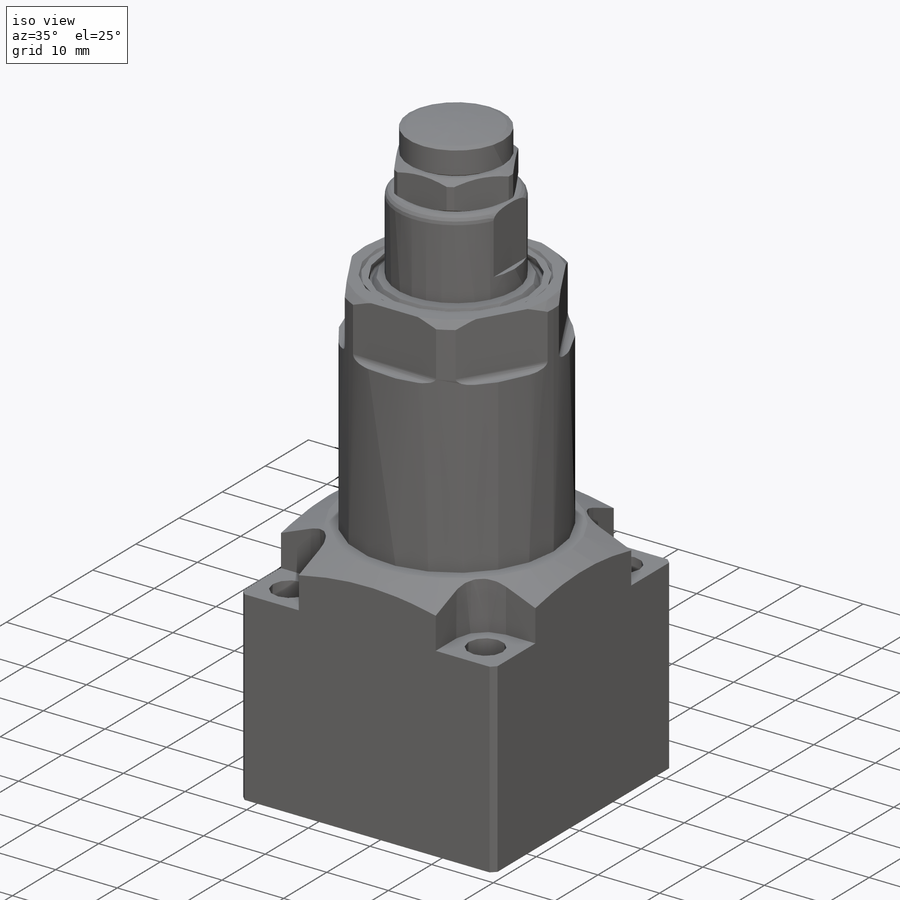
[diagram: iso view]
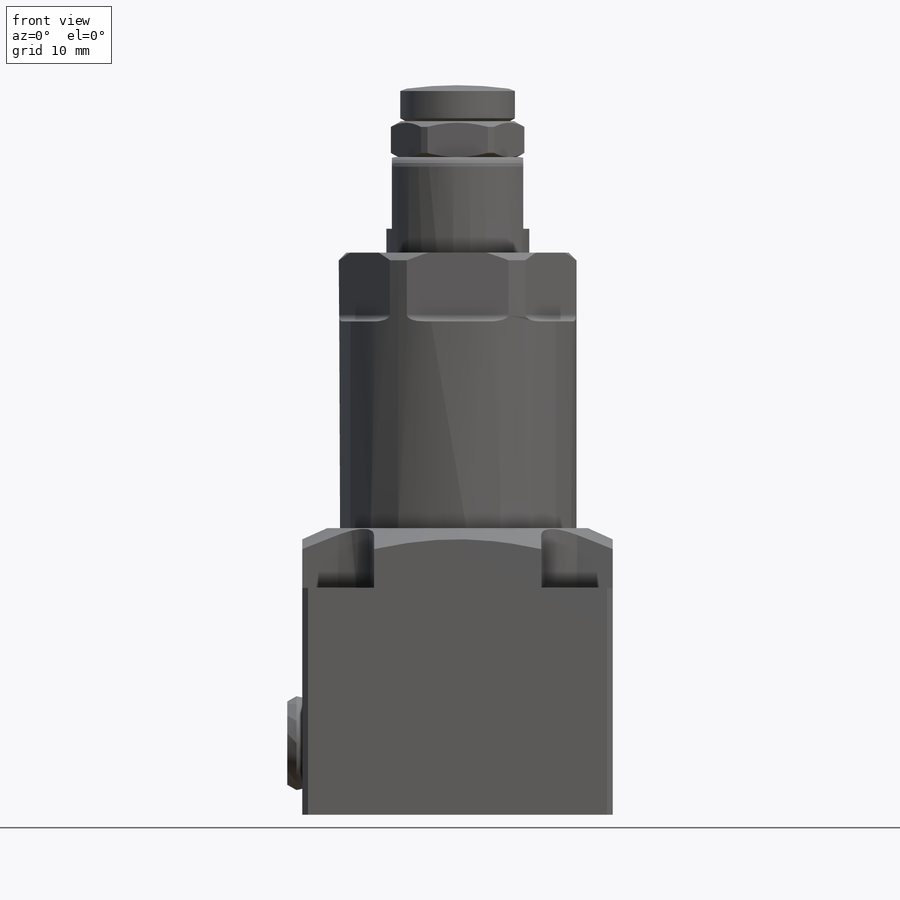
[diagram: front view]
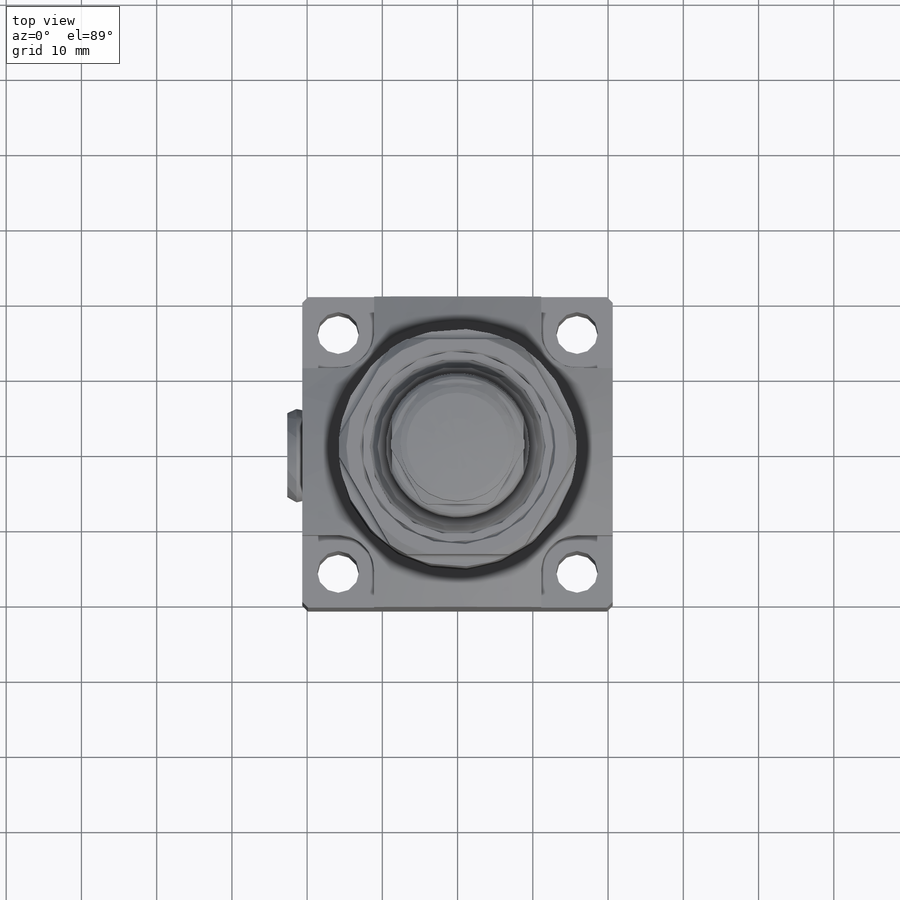
[diagram: top view]
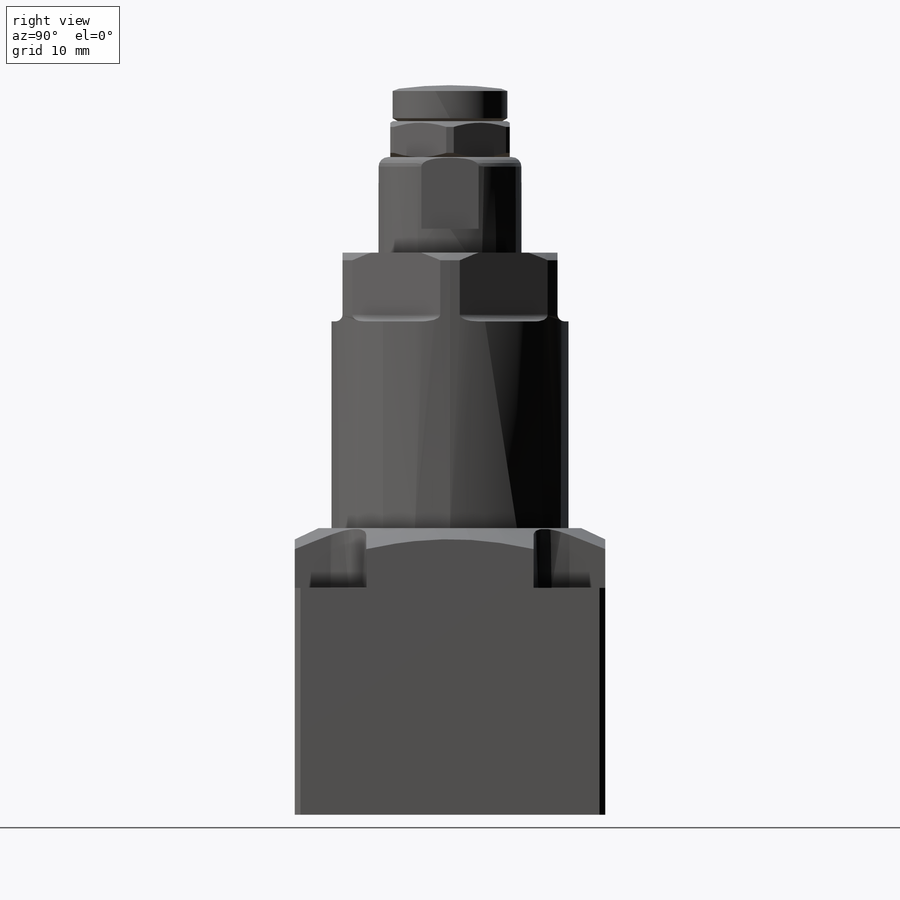
[diagram: right view]
SOLIDWORKS PART (.sldprt)
format: sldprt  version: not decoded by parser v0  size: 698,368 bytes
history: native  units: mm
features: sketch x20, cut_extrude x11, revolve x5, material x1, fillet x1, hole x1, thread x1, extrude x1, chamfer x1, cut_revolve x1 (+11 scaffold rows collapsed)
feature tree (54):
  scaffold x11  (default folders/planes/origin — collapsed)
  material  "Alloy Steel"
  sketch  "Sketch1"  dims[c1.D10=1.778mm c1.D21=0.508mm c1.D5=~90.802318mm c1.D26=~0.814283mm c2.D10=1.778mm c2.D1=25.146mm c2.D2=58.1152mm c2.D3=~1.392436mm c3.D3=45.0deg c3.D4=~0.81663mm c4.D4=45.0deg c4.D5=~0.493551mm c5.D5=45.0deg c5.D6=8.3058mm c5.D7=3.81mm c5.D8=1.3208mm c5.D9=4.7752mm c5.D11=15.875mm c5.D12=17.4752mm c5.D13=23.3426mm c5.D14=0.381mm c5.D15=0.762mm c6.D5=4.9784mm c7.D5=45.0deg c8.D5=25.146mm c8.D16=~1.051559mm c9.D16=45.0deg c9.D17=1.016mm c9.D18=~0.251991mm c10.D18=60.0deg c10.D19=0.508mm c10.D20=1.016mm c10.D22=~1.223555mm c11.D22=30.0deg c11.D23=0.889mm c11.D24=0.2794mm c11.D5=31.5976mm c11.D9=4.7752mm c11.D11=18.923mm c11.D12=21.1836mm c11.D13=29.7434mm c11.D25=25.4mm]
  revolve  "Revolve1"  Angle=360deg
  sketch  "Sketch2"  dims[D1=28.575mm]
  cut_extrude  "Cut-Extrude1"  Depth=9.144mm
  fillet  "Fillet1"  Radius=0.9144mm
  sketch  "Sketch3"  dims[D3=1.27mm D1=19.05mm D2=12.7mm]
  revolve  "Revolve2"  Angle=360deg
  sketch  "Sketch4"  dims[c1.D1=~6.322647mm c1.D2=~2.070736mm c2.D1=~3.161323mm c2.D2=~8.420992mm c3.D1=~6.322647mm c3.D2=~1.982995mm c4.D1=17.4625mm c4.D2=9.525mm]
  cut_extrude  "Cut-Extrude2"  Depth=22.225mm
  hole  "7/16-14 Tapped Hole1"  Diameter=9.3472mm Depth=6.35mm
  sketch  "Sketch6"
  sketch  "Sketch5"  dims[hole-wizard template sketch: 47 standard entries collapsed; hole parameters kept: c15.Tap Drill Depth=6.35mm c15.D3=~14.816244mm c15.Drill Angle=180.0deg]
  thread  "Hole Thread1"  Diameter=6.35mm  [1 undecoded]
  sketch  "Sketch7"  dims[c1.D1=~1.097666mm c1.D2=~7.438728mm c2.D1=17.78mm c2.D2=3.556mm c2.D3=~0.757947mm c3.D3=30.0deg c3.D4=7.1501mm c4.D4=30.0deg c4.D5=12.7mm c4.D2=15.875mm c4.D6=4.7752mm c5.D5=0.762mm]
  revolve  "Revolve3"  Angle=360deg
  sketch  "Sketch8"  dims[D1=15.875mm D2=~14.664697mm]
  cut_extrude  "Cut-Extrude3"  Depth=4.7752mm
  sketch  "Sketch9"  dims[D1=41.275mm D2=38.1mm D3=36.6268mm D4=20.6502mm]
  extrude  "Boss-Extrude1"  Depth=41.275mm
  chamfer  "Chamfer1"  Distance=0.762mm Angle=45deg
  sketch  "Sketch10"  dims[D1=5.5626mm D2=15.875mm D3=15.875mm D4=15.875mm D5=15.875mm]
  cut_extrude  "Cut-Extrude4"  Depth=41.275mm
  sketch  "Sketch11"  dims[c1.D1=~8.428107mm c2.D1=25.0deg c2.D2=12.7mm c2.D3=17.4625mm]
  cut_revolve  "Cut-Revolve1"  Angle=360deg
  sketch  "Sketch12"  dims[D3=20.955mm D1=20.6502mm D2=9.525mm]
  cut_extrude  "Cut-Extrude5"  Depth=0.254mm
  sketch  "Sketch13"  dims[D1=9.9568mm]
  cut_extrude  "Cut-Extrude6"  Depth=8.89mm
  sketch  "Sketch14"  dims[D3=8.7376mm D1=14.3002mm D2=10.3124mm]
  cut_extrude  "Cut-Extrude7"  Depth=8.89mm
  sketch  "Sketch15"  dims[D1=12.827mm D2=8.7376mm D3=7.9502mm D4=9.1186mm D5=7.9502mm]
  cut_extrude  "Cut-Extrude8"  Depth=1.9558mm
  sketch  "Sketch16"  dims[D1=8.3312mm D2=8.3312mm]
  cut_extrude  "Cut-Extrude9"  Depth=3.9624mm
  sketch  "Sketch17"  dims[c1.D7=50.8mm c1.D1=4.7752mm c1.D2=7.62mm c1.D3=0.381mm c1.D4=~1.942894mm c2.D4=30.0deg c2.D5=~0.380721mm c3.D5=70.0deg c3.D6=3.6322mm c3.D8=0.4572mm c3.D9=~6.960089mm]
  revolve  "Revolve4"  Angle=360deg
  sketch  "Sketch18"  dims[c1.D1=9.525mm c1.D2=0.254mm c1.D3=1.016mm c1.D4=~1.192867mm c2.D4=30.0deg c2.D5=12.1158mm c2.D6=12.573mm c2.D7=11.1506mm c2.D8=9.144mm c2.D9=11.1252mm]
  revolve  "Revolve5"  Angle=360deg
  sketch  "Sketch20"  dims[c1.D1=~2.887871mm c2.D1=120.0deg c2.D2=1.3716mm c2.D3=4.7625mm]
  cut_extrude  "Cut-Extrude10"  Depth=6.35mm
  sketch  "Sketch21"
  cut_extrude  "Cut-Extrude11"  Depth=7.9375mm
decode coverage: 40 of 42 modeling features carry decoded parameters
note: ~ marks probable driven/reference dimensions
note: 1 parameter value undecoded
note: suppression state not decoded; provenance and decode notes live in map.json
